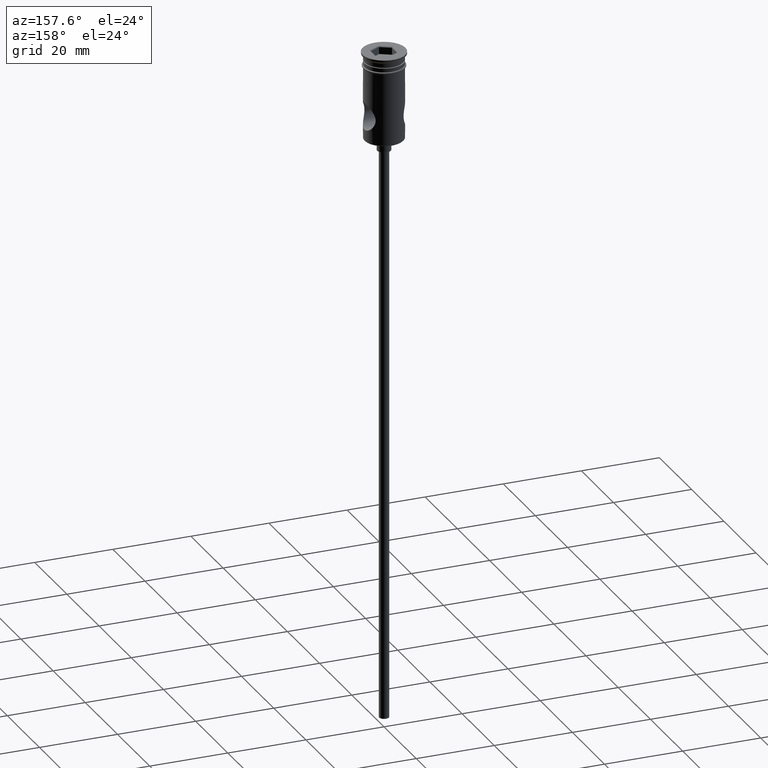
[diagram: clean part render]
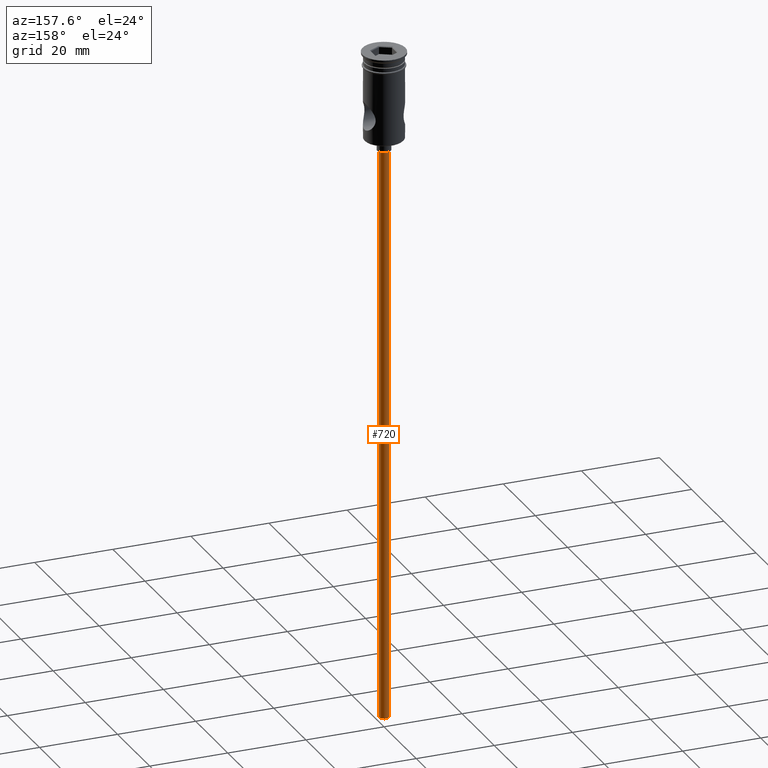
[diagram: same view with one face highlighted and labeled with its STEP entity id]
A machine part, auxiliary view. The second image highlights one B-rep face of the part: STEP entity #720.
In plain terms, the highlighted cylindrical surface (edge-blend (fillet) strip) has radius 1.25 mm, axis along (-0, -0, 1).
Its self-contained STEP definition (entity closure, byte-faithful):
#35 = LINE ( 'NONE', #1023, #273 ) ;
#38 = FACE_OUTER_BOUND ( 'NONE', #594, .T. ) ;
#49 = CYLINDRICAL_SURFACE ( 'NONE', #480, 1.250000000000000000 ) ;
#93 = VERTEX_POINT ( 'NONE', #1196 ) ;
#153 = DIRECTION ( 'NONE',  ( 1.000000000000000000, 0.000000000000000000, 0.000000000000000000 ) ) ;
#177 = AXIS2_PLACEMENT_3D ( 'NONE', #938, #1382, #382 ) ;
#262 = CARTESIAN_POINT ( 'NONE',  ( -1.250000000000000000, 1.530808498934191571E-16, -25.50000000000000000 ) ) ;
#273 = VECTOR ( 'NONE', #477, 1000.000000000000000 ) ;
#293 = DIRECTION ( 'NONE',  ( 0.000000000000000000, 0.000000000000000000, -1.000000000000000000 ) ) ;
#294 = EDGE_CURVE ( 'NONE', #1186, #666, #919, .T. ) ;
#382 = DIRECTION ( 'NONE',  ( -1.000000000000000000, 0.000000000000000000, 0.000000000000000000 ) ) ;
#410 = DIRECTION ( 'NONE',  ( -1.000000000000000000, 0.000000000000000000, 0.000000000000000000 ) ) ;
#418 = ORIENTED_EDGE ( 'NONE', *, *, #766, .F. ) ;
#457 = CIRCLE ( 'NONE', #850, 1.250000000000000000 ) ;
#477 = DIRECTION ( 'NONE',  ( -0.000000000000000000, -0.000000000000000000, 1.000000000000000000 ) ) ;
#478 = DIRECTION ( 'NONE',  ( -0.000000000000000000, -0.000000000000000000, 1.000000000000000000 ) ) ;
#480 = AXIS2_PLACEMENT_3D ( 'NONE', #504, #478, #153 ) ;
#504 = CARTESIAN_POINT ( 'NONE',  ( 0.000000000000000000, 0.000000000000000000, -172.5000000000000000 ) ) ;
#510 = ORIENTED_EDGE ( 'NONE', *, *, #1190, .F. ) ;
#540 = DIRECTION ( 'NONE',  ( -0.000000000000000000, -0.000000000000000000, 1.000000000000000000 ) ) ;
#594 = EDGE_LOOP ( 'NONE', ( #510, #1397, #1168, #418 ) ) ;
#666 = VERTEX_POINT ( 'NONE', #912 ) ;
#720 = ADVANCED_FACE ( 'NONE', ( #38 ), #49, .T. ) ;
#766 = EDGE_CURVE ( 'NONE', #93, #666, #855, .T. ) ;
#850 = AXIS2_PLACEMENT_3D ( 'NONE', #1147, #293, #410 ) ;
#855 = LINE ( 'NONE', #1087, #995 ) ;
#911 = CARTESIAN_POINT ( 'NONE',  ( -1.250000000000000000, 1.530808498934191571E-16, -172.5000000000000000 ) ) ;
#912 = CARTESIAN_POINT ( 'NONE',  ( 1.250000000000000000, 0.000000000000000000, -25.50000000000000000 ) ) ;
#919 = CIRCLE ( 'NONE', #177, 1.250000000000000000 ) ;
#938 = CARTESIAN_POINT ( 'NONE',  ( 0.000000000000000000, 0.000000000000000000, -25.50000000000000000 ) ) ;
#995 = VECTOR ( 'NONE', #540, 1000.000000000000000 ) ;
#1023 = CARTESIAN_POINT ( 'NONE',  ( -1.250000000000000000, 1.530808498934191571E-16, -172.5000000000000000 ) ) ;
#1071 = VERTEX_POINT ( 'NONE', #911 ) ;
#1087 = CARTESIAN_POINT ( 'NONE',  ( 1.250000000000000000, 0.000000000000000000, -172.5000000000000000 ) ) ;
#1147 = CARTESIAN_POINT ( 'NONE',  ( 0.000000000000000000, 0.000000000000000000, -172.5000000000000000 ) ) ;
#1155 = EDGE_CURVE ( 'NONE', #1071, #1186, #35, .T. ) ;
#1168 = ORIENTED_EDGE ( 'NONE', *, *, #294, .T. ) ;
#1186 = VERTEX_POINT ( 'NONE', #262 ) ;
#1190 = EDGE_CURVE ( 'NONE', #1071, #93, #457, .T. ) ;
#1196 = CARTESIAN_POINT ( 'NONE',  ( 1.250000000000000000, 0.000000000000000000, -172.5000000000000000 ) ) ;
#1382 = DIRECTION ( 'NONE',  ( 0.000000000000000000, 0.000000000000000000, -1.000000000000000000 ) ) ;
#1397 = ORIENTED_EDGE ( 'NONE', *, *, #1155, .T. ) ;